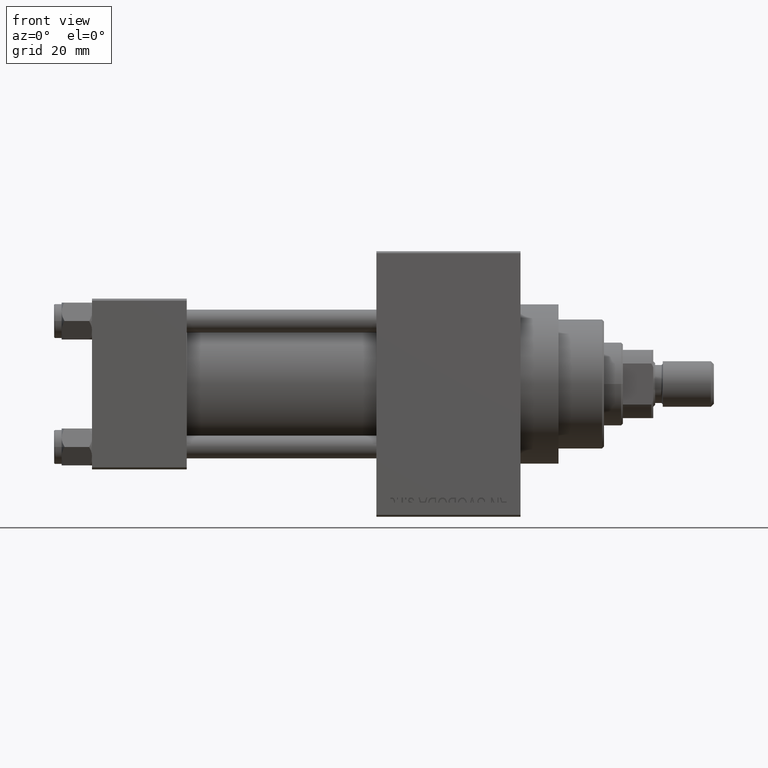
[diagram: clean part render]
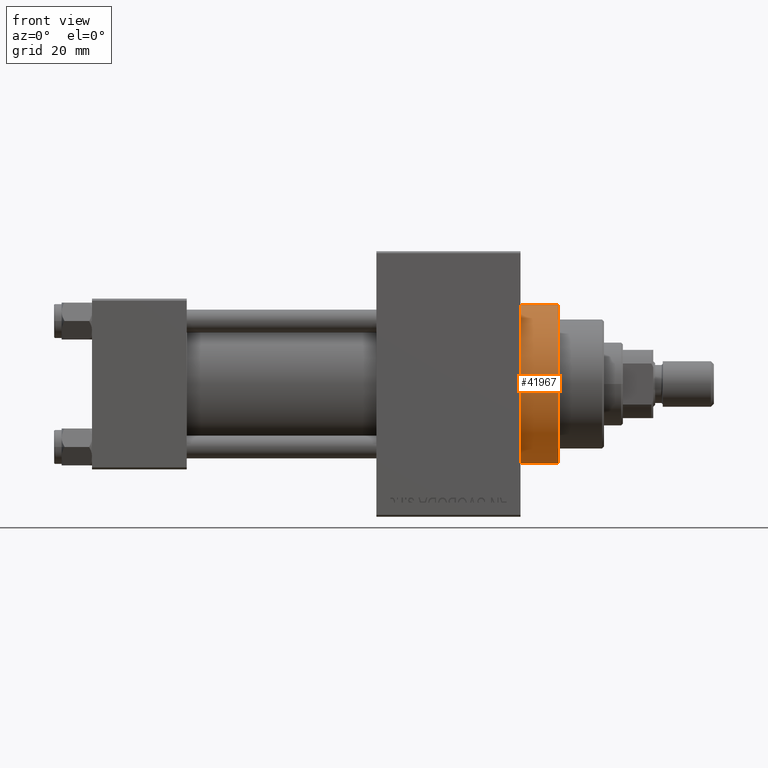
[diagram: same view with one face highlighted and labeled with its STEP entity id]
A machine part, front view. The second image highlights one B-rep face of the part: STEP entity #41967.
In plain terms, the highlighted cylindrical surface (partial cylindrical patch) has radius 21 mm, axis along (-1, -0, -0).
Its self-contained STEP definition (entity closure, byte-faithful):
#1180 = CYLINDRICAL_SURFACE ( 'NONE', #14326, 21.00000000000000000 ) ;
#1715 = AXIS2_PLACEMENT_3D ( 'NONE', #15442, #40718, #22917 ) ;
#2294 = EDGE_CURVE ( 'NONE', #28049, #2881, #6264, .T. ) ;
#2881 = VERTEX_POINT ( 'NONE', #3073 ) ;
#3073 = CARTESIAN_POINT ( 'NONE',  ( 123.0000000000000142, 2.571758278209441661E-15, -21.00000000000000000 ) ) ;
#4495 = DIRECTION ( 'NONE',  ( -1.000000000000000000, -0.000000000000000000, -0.000000000000000000 ) ) ;
#5209 = DIRECTION ( 'NONE',  ( 0.000000000000000000, 0.000000000000000000, -1.000000000000000000 ) ) ;
#6264 = CIRCLE ( 'NONE', #32514, 21.00000000000000000 ) ;
#8272 = CARTESIAN_POINT ( 'NONE',  ( 113.0000000000000142, 0.000000000000000000, 21.00000000000000000 ) ) ;
#13768 = VERTEX_POINT ( 'NONE', #8272 ) ;
#14127 = EDGE_CURVE ( 'NONE', #13768, #34517, #30549, .T. ) ;
#14326 = AXIS2_PLACEMENT_3D ( 'NONE', #16360, #26954, #23343 ) ;
#15442 = CARTESIAN_POINT ( 'NONE',  ( 113.0000000000000142, 0.000000000000000000, 0.000000000000000000 ) ) ;
#15630 = EDGE_CURVE ( 'NONE', #28049, #13768, #22807, .T. ) ;
#16360 = CARTESIAN_POINT ( 'NONE',  ( 123.0000000000000142, 0.000000000000000000, 0.000000000000000000 ) ) ;
#19440 = CARTESIAN_POINT ( 'NONE',  ( 123.0000000000000142, 0.000000000000000000, 21.00000000000000000 ) ) ;
#19549 = EDGE_CURVE ( 'NONE', #2881, #34517, #38270, .T. ) ;
#19991 = CARTESIAN_POINT ( 'NONE',  ( 123.0000000000000142, 2.571758278209441661E-15, -21.00000000000000000 ) ) ;
#22807 = LINE ( 'NONE', #19440, #27284 ) ;
#22917 = DIRECTION ( 'NONE',  ( 0.000000000000000000, 0.000000000000000000, -1.000000000000000000 ) ) ;
#23103 = FACE_OUTER_BOUND ( 'NONE', #36458, .T. ) ;
#23343 = DIRECTION ( 'NONE',  ( 0.000000000000000000, 0.000000000000000000, 1.000000000000000000 ) ) ;
#23540 = VECTOR ( 'NONE', #24074, 1000.000000000000000 ) ;
#24074 = DIRECTION ( 'NONE',  ( -1.000000000000000000, -0.000000000000000000, -0.000000000000000000 ) ) ;
#26635 = ORIENTED_EDGE ( 'NONE', *, *, #14127, .T. ) ;
#26954 = DIRECTION ( 'NONE',  ( -1.000000000000000000, -0.000000000000000000, -0.000000000000000000 ) ) ;
#27284 = VECTOR ( 'NONE', #4495, 1000.000000000000000 ) ;
#27807 = ORIENTED_EDGE ( 'NONE', *, *, #2294, .F. ) ;
#28049 = VERTEX_POINT ( 'NONE', #32296 ) ;
#30549 = CIRCLE ( 'NONE', #1715, 21.00000000000000000 ) ;
#31245 = CARTESIAN_POINT ( 'NONE',  ( 113.0000000000000142, 2.571758278209441661E-15, -21.00000000000000000 ) ) ;
#32296 = CARTESIAN_POINT ( 'NONE',  ( 123.0000000000000142, 0.000000000000000000, 21.00000000000000000 ) ) ;
#32514 = AXIS2_PLACEMENT_3D ( 'NONE', #42962, #38196, #5209 ) ;
#34517 = VERTEX_POINT ( 'NONE', #31245 ) ;
#36458 = EDGE_LOOP ( 'NONE', ( #41598, #27807, #39238, #26635 ) ) ;
#38196 = DIRECTION ( 'NONE',  ( 1.000000000000000000, 0.000000000000000000, 0.000000000000000000 ) ) ;
#38270 = LINE ( 'NONE', #19991, #23540 ) ;
#39238 = ORIENTED_EDGE ( 'NONE', *, *, #15630, .T. ) ;
#40718 = DIRECTION ( 'NONE',  ( 1.000000000000000000, 0.000000000000000000, 0.000000000000000000 ) ) ;
#41598 = ORIENTED_EDGE ( 'NONE', *, *, #19549, .F. ) ;
#41967 = ADVANCED_FACE ( 'NONE', ( #23103 ), #1180, .T. ) ;
#42962 = CARTESIAN_POINT ( 'NONE',  ( 123.0000000000000142, 0.000000000000000000, 0.000000000000000000 ) ) ;